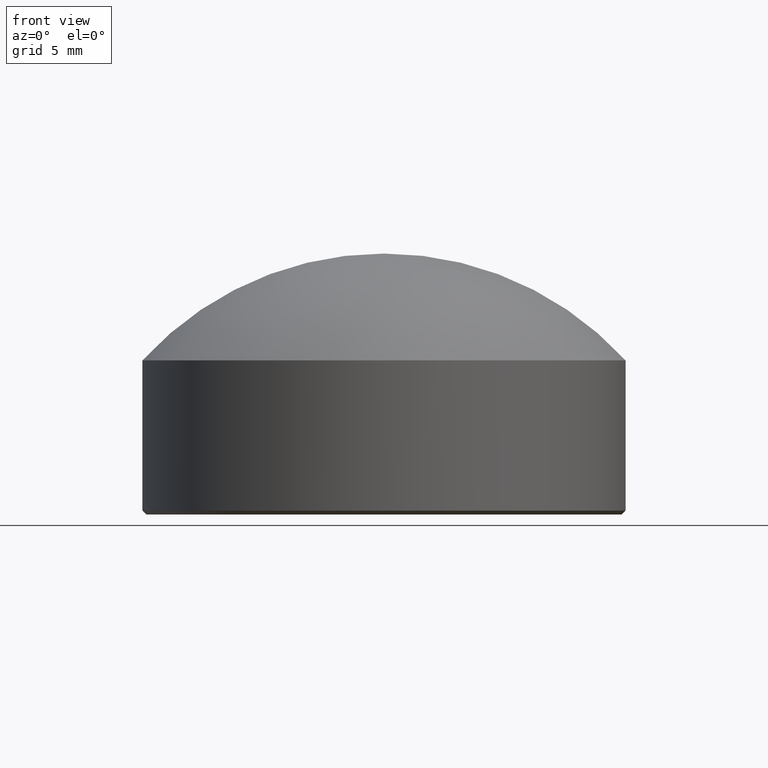
[diagram: clean part render]
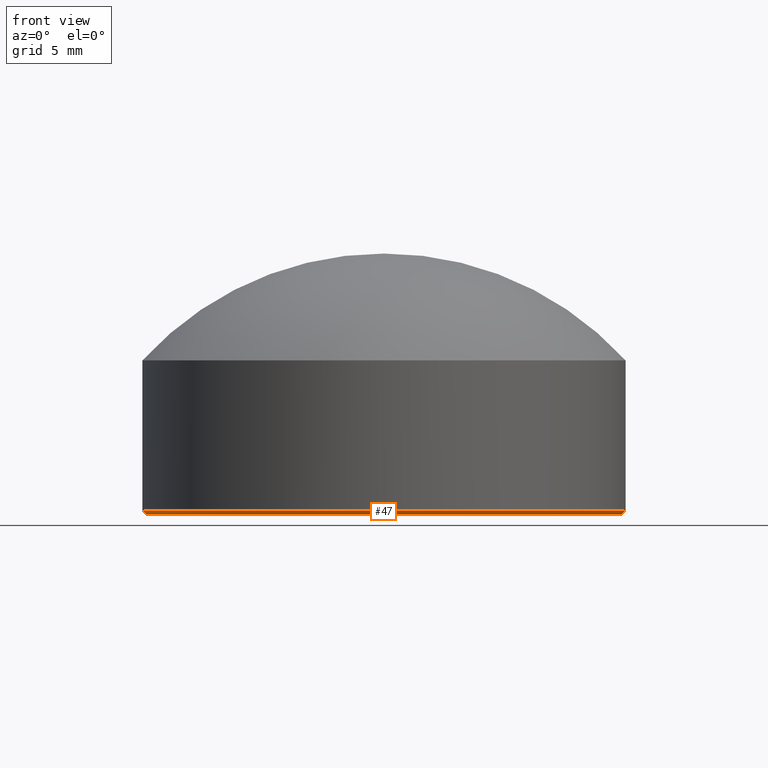
[diagram: same view with one face highlighted and labeled with its STEP entity id]
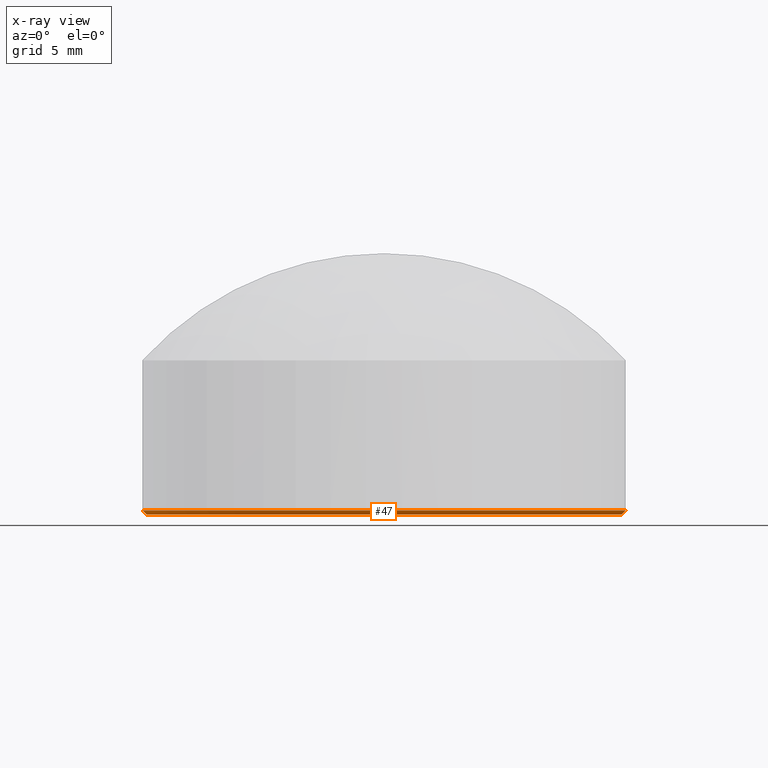
[diagram: x-ray of the same camera — body ghosted, the highlighted face saturated]
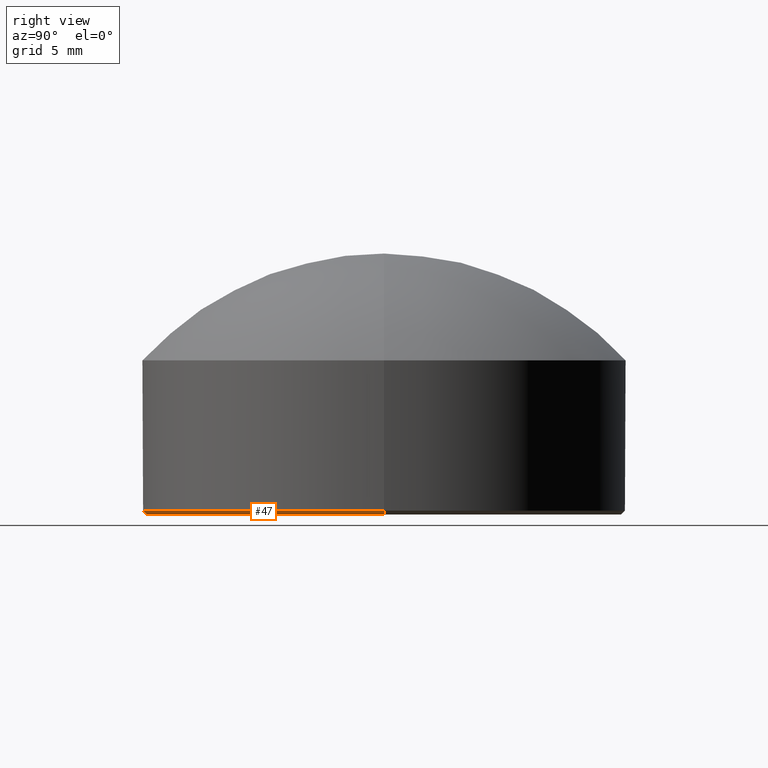
[diagram: same view with one face highlighted and labeled with its STEP entity id]
A machine part, front view. The second image highlights one B-rep face of the part: STEP entity #47.
The next image is the same camera in x-ray: the body ghosted, the highlighted face saturated — about 0% of this face is hidden behind the body in this view.
A second angle (right view) of the same face is appended — the face is thin or edge-on in the first view.
In plain terms, the highlighted conical surface has half-angle 45 deg.
Its self-contained STEP definition (entity closure, byte-faithful):
#2 = LINE ( 'NONE', #100, #158 ) ;
#4 = CARTESIAN_POINT ( 'NONE',  ( 0.000000000000000000, 0.000000000000000000, 0.2000000000000074496 ) ) ;
#7 = CARTESIAN_POINT ( 'NONE',  ( -12.29999999999999538, 1.518562030942717770E-15, 0.000000000000000000 ) ) ;
#8 = CIRCLE ( 'NONE', #137, 12.29999999999999538 ) ;
#9 = VERTEX_POINT ( 'NONE', #110 ) ;
#15 = ORIENTED_EDGE ( 'NONE', *, *, #32, .T. ) ;
#30 = CARTESIAN_POINT ( 'NONE',  ( 12.29999999999999538, 0.000000000000000000, 0.000000000000000000 ) ) ;
#32 = EDGE_CURVE ( 'NONE', #195, #214, #2, .T. ) ;
#33 = CARTESIAN_POINT ( 'NONE',  ( 0.000000000000000000, 0.000000000000000000, 0.000000000000000000 ) ) ;
#45 = DIRECTION ( 'NONE',  ( -0.000000000000000000, -0.000000000000000000, 1.000000000000000000 ) ) ;
#47 = ADVANCED_FACE ( 'NONE', ( #66 ), #145, .T. ) ;
#48 = CIRCLE ( 'NONE', #179, 12.50000000000000000 ) ;
#50 = VECTOR ( 'NONE', #157, 1000.000000000000000 ) ;
#54 = VERTEX_POINT ( 'NONE', #7 ) ;
#56 = ORIENTED_EDGE ( 'NONE', *, *, #210, .F. ) ;
#66 = FACE_OUTER_BOUND ( 'NONE', #129, .T. ) ;
#78 = CARTESIAN_POINT ( 'NONE',  ( -12.50000000000000000, 1.530808498934191521E-15, 0.2000000000000074496 ) ) ;
#82 = DIRECTION ( 'NONE',  ( 1.000000000000000000, 0.000000000000000000, 0.000000000000000000 ) ) ;
#98 = DIRECTION ( 'NONE',  ( -0.000000000000000000, -0.000000000000000000, -1.000000000000000000 ) ) ;
#100 = CARTESIAN_POINT ( 'NONE',  ( 12.50000000000000000, 0.000000000000000000, 0.2000000000000074496 ) ) ;
#102 = CARTESIAN_POINT ( 'NONE',  ( 12.50000000000000000, 1.530808498934191521E-15, 0.2000000000000074496 ) ) ;
#110 = CARTESIAN_POINT ( 'NONE',  ( -12.50000000000000000, 0.000000000000000000, 0.2000000000000074496 ) ) ;
#115 = DIRECTION ( 'NONE',  ( 1.000000000000000000, 0.000000000000000000, 0.000000000000000000 ) ) ;
#120 = DIRECTION ( 'NONE',  ( 0.7071067811865444641, 0.000000000000000000, 0.7071067811865505703 ) ) ;
#123 = DIRECTION ( 'NONE',  ( 1.000000000000000000, 0.000000000000000000, 0.000000000000000000 ) ) ;
#129 = EDGE_LOOP ( 'NONE', ( #152, #56, #15, #133 ) ) ;
#133 = ORIENTED_EDGE ( 'NONE', *, *, #207, .F. ) ;
#137 = AXIS2_PLACEMENT_3D ( 'NONE', #33, #98, #82 ) ;
#141 = AXIS2_PLACEMENT_3D ( 'NONE', #4, #162, #123 ) ;
#145 = CONICAL_SURFACE ( 'NONE', #141, 12.50000000000000000, 0.7853981633974439491 ) ;
#152 = ORIENTED_EDGE ( 'NONE', *, *, #159, .F. ) ;
#157 = DIRECTION ( 'NONE',  ( -0.7071067811865444641, 8.659560562354895880E-17, 0.7071067811865505703 ) ) ;
#158 = VECTOR ( 'NONE', #120, 1000.000000000000000 ) ;
#159 = EDGE_CURVE ( 'NONE', #54, #9, #186, .T. ) ;
#162 = DIRECTION ( 'NONE',  ( -0.000000000000000000, -0.000000000000000000, 1.000000000000000000 ) ) ;
#179 = AXIS2_PLACEMENT_3D ( 'NONE', #202, #45, #115 ) ;
#186 = LINE ( 'NONE', #78, #50 ) ;
#195 = VERTEX_POINT ( 'NONE', #30 ) ;
#202 = CARTESIAN_POINT ( 'NONE',  ( 0.000000000000000000, 0.000000000000000000, 0.2000000000000074496 ) ) ;
#207 = EDGE_CURVE ( 'NONE', #9, #214, #48, .T. ) ;
#210 = EDGE_CURVE ( 'NONE', #195, #54, #8, .T. ) ;
#214 = VERTEX_POINT ( 'NONE', #102 ) ;